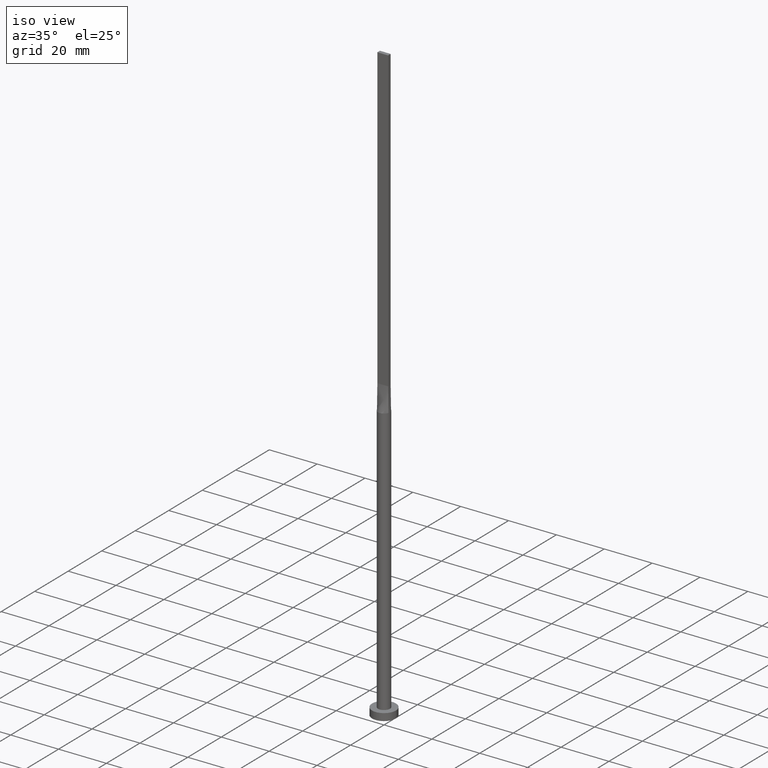
[diagram: clean part render]
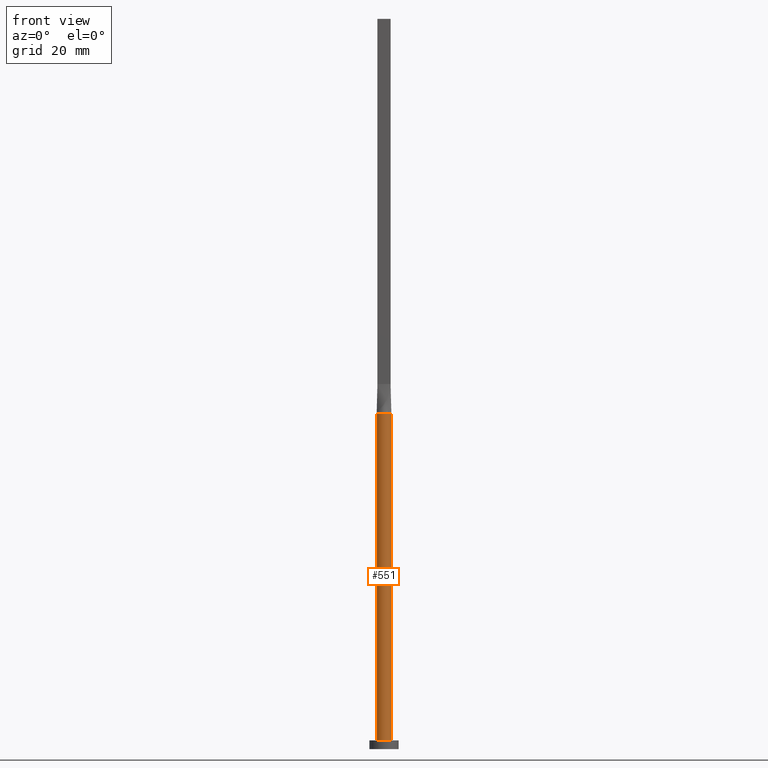
[diagram: tour spotlight — one face highlighted and labeled with its STEP entity id]
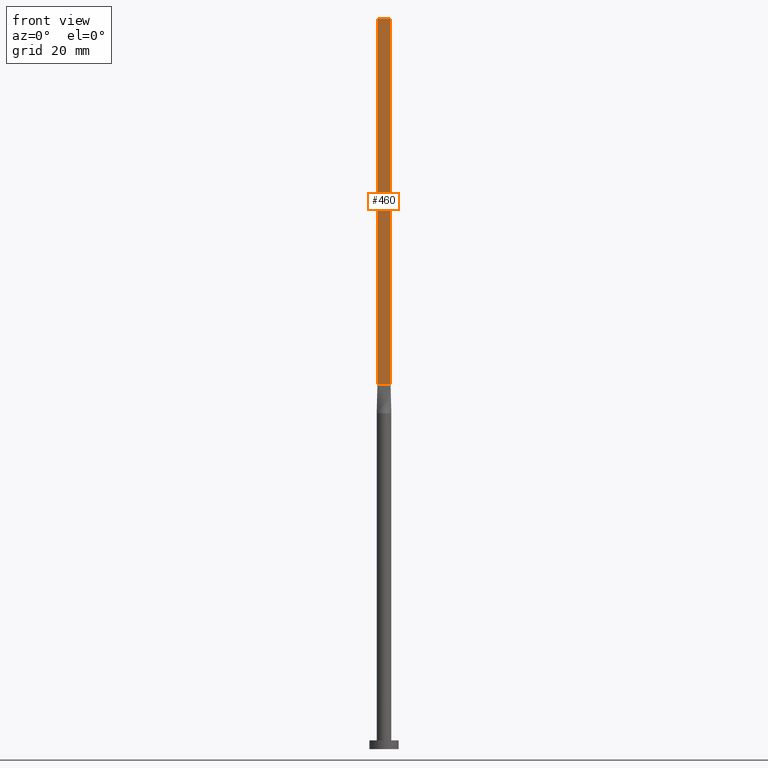
[diagram: tour spotlight — one face highlighted and labeled with its STEP entity id]
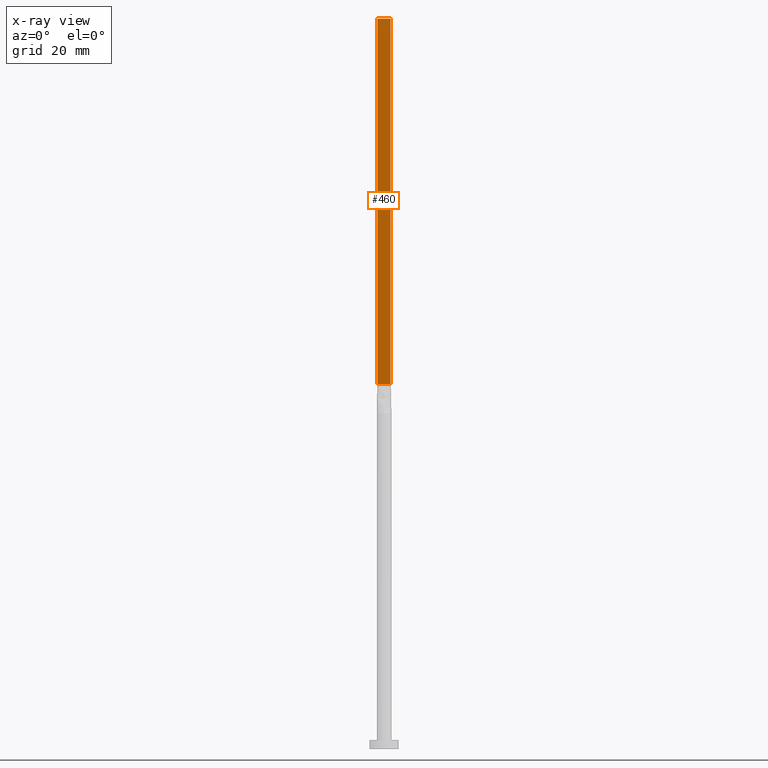
[diagram: x-ray of the same camera — body ghosted, this tour face saturated]
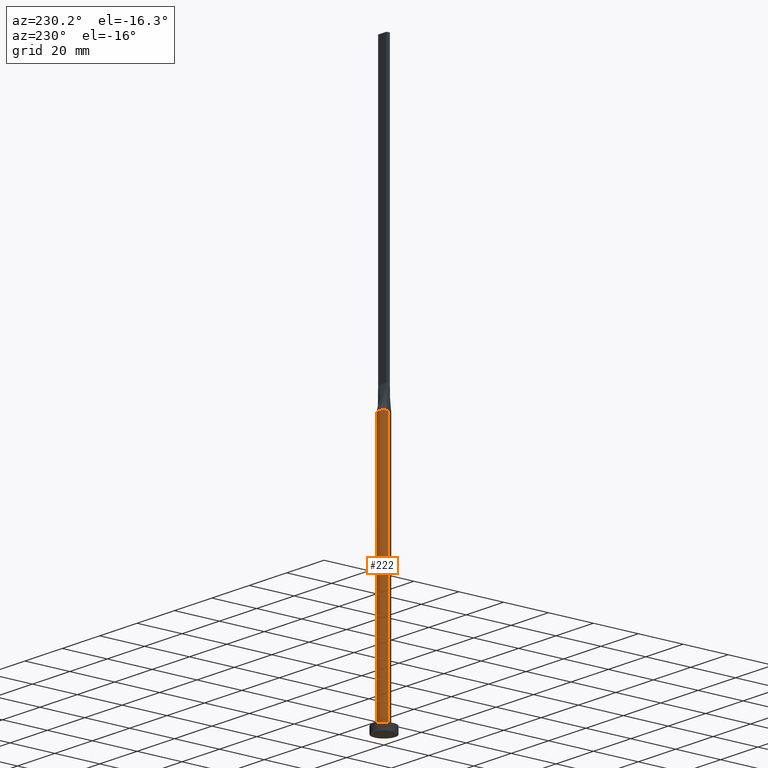
[diagram: tour spotlight — one face highlighted and labeled with its STEP entity id]
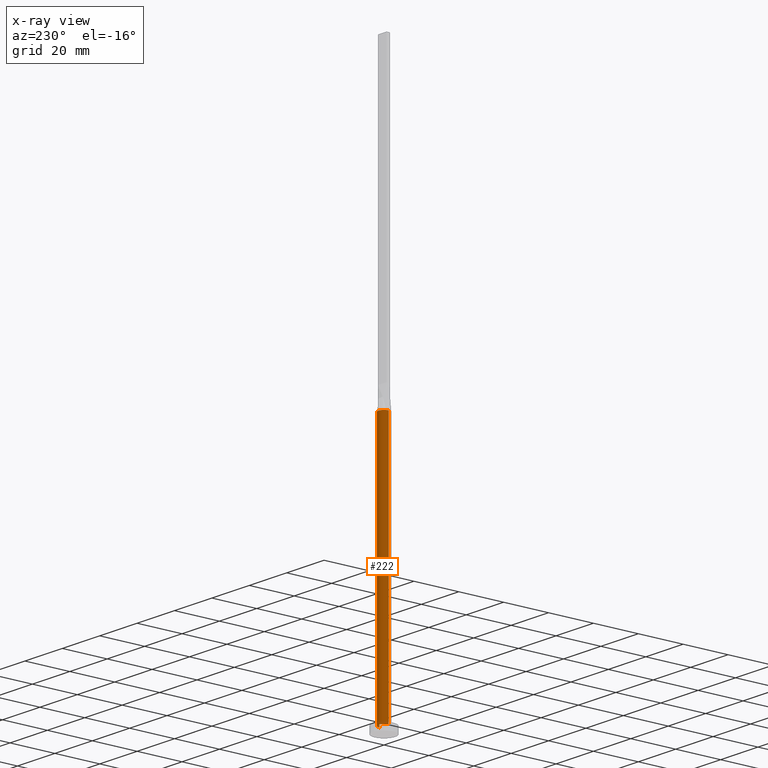
[diagram: x-ray of the same camera — body ghosted, this tour face saturated]
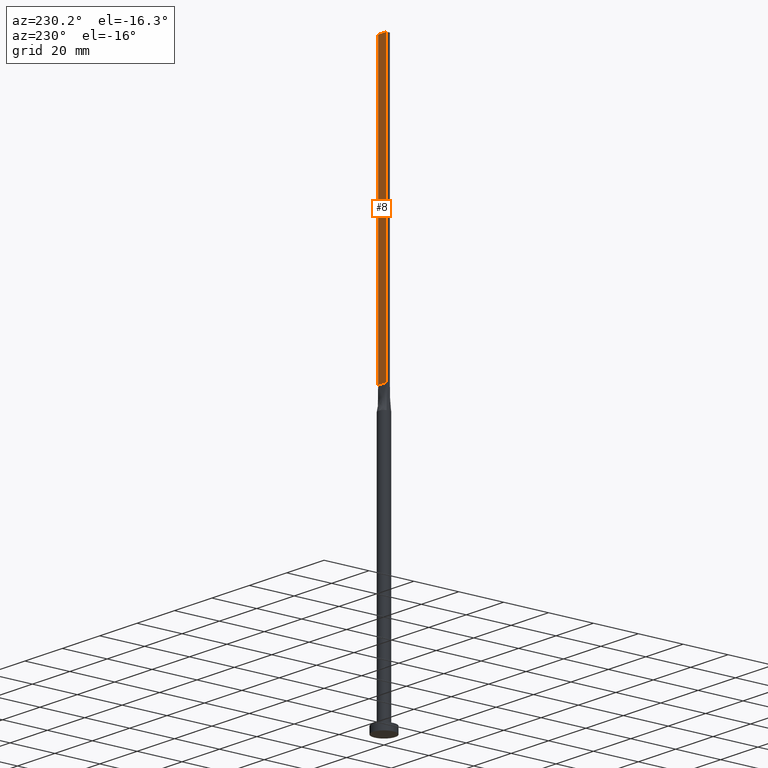
[diagram: tour spotlight — one face highlighted and labeled with its STEP entity id]
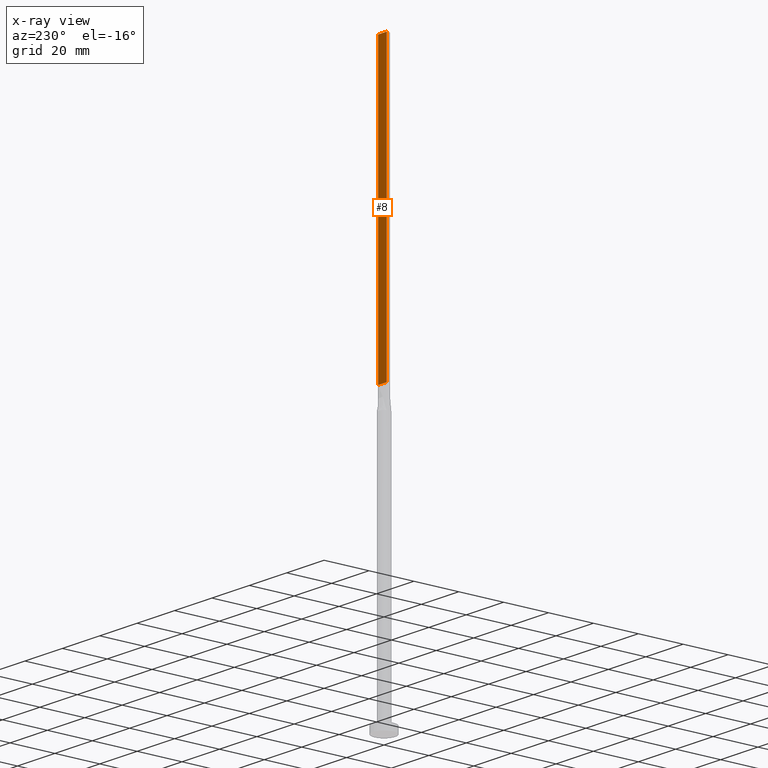
[diagram: x-ray of the same camera — body ghosted, this tour face saturated]
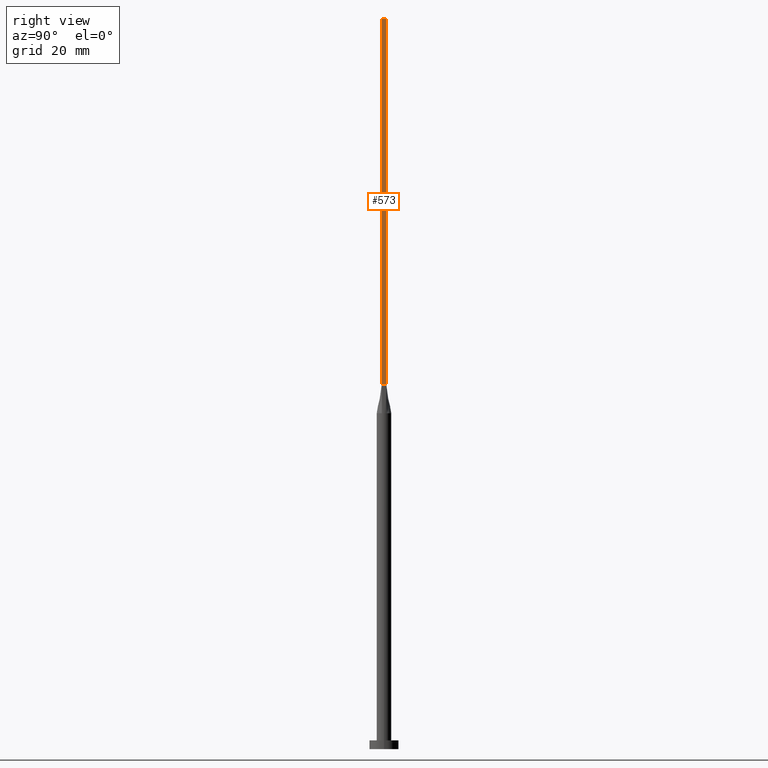
[diagram: tour spotlight — one face highlighted and labeled with its STEP entity id]
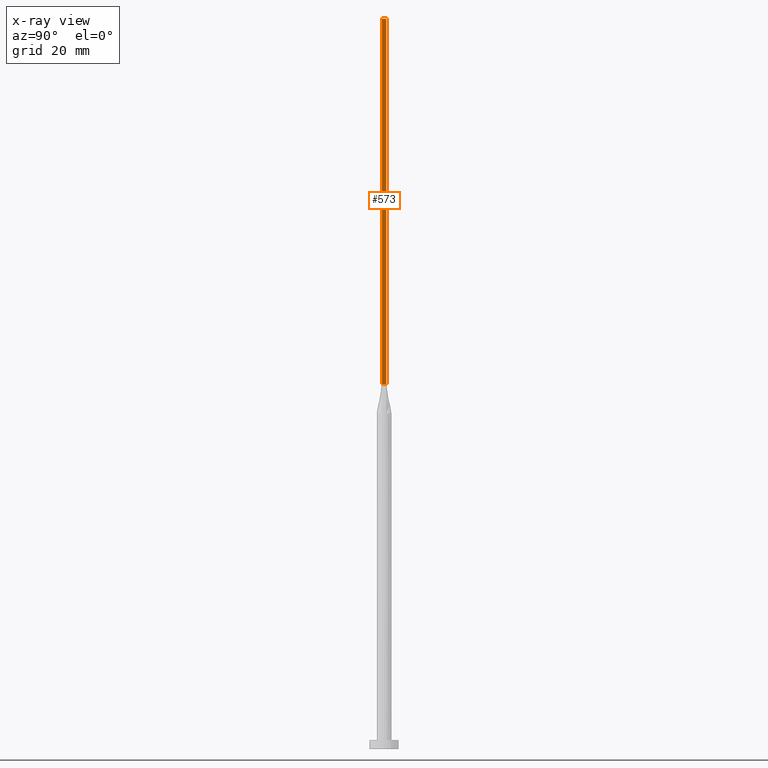
[diagram: x-ray of the same camera — body ghosted, this tour face saturated]
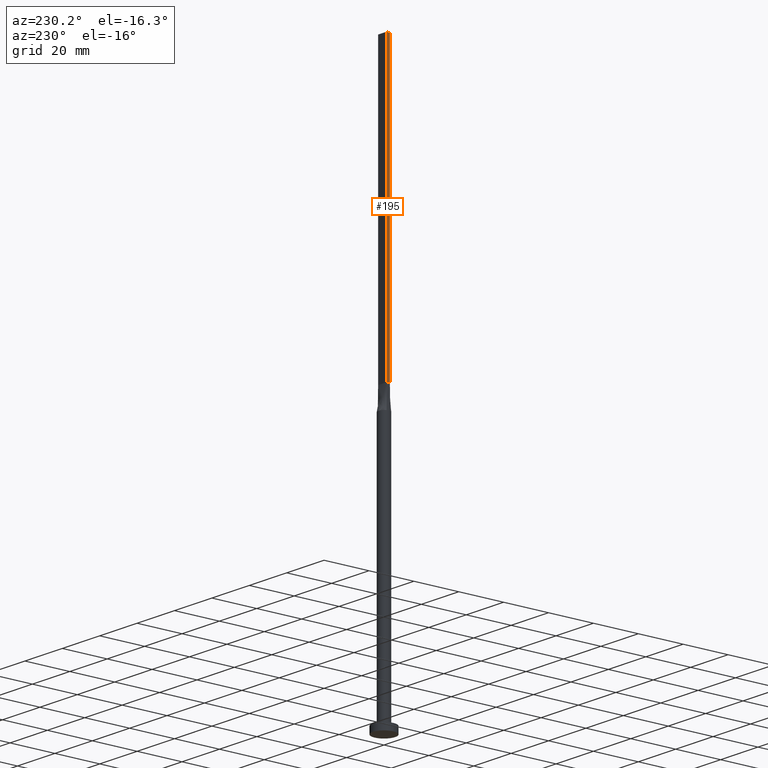
[diagram: tour spotlight — one face highlighted and labeled with its STEP entity id]
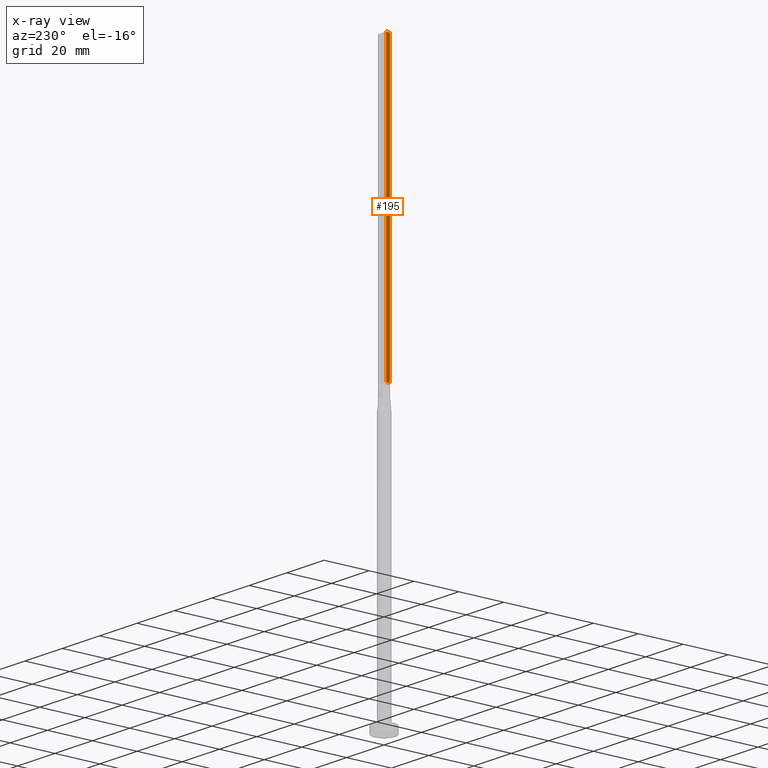
[diagram: x-ray of the same camera — body ghosted, this tour face saturated]
A machine part: a face-by-face anatomy tour. The part has 15 B-rep faces; the first image is the clean iso view, then the 6 largest visible faces are spotlighted one at a time (largest first), each with its STEP entity span.

Face 1 — front view, entity #551. In plain terms, the highlighted cylindrical surface (edge-blend (fillet) strip) has radius 2.5 mm, axis along (-0, -0, -1).
Definition (entity closure, byte-faithful):
#27 = CARTESIAN_POINT ( 'NONE',  ( 2.500000000000000000, 3.061616997868383141E-16, 3.000000000000000000 ) ) ;
#28 = VERTEX_POINT ( 'NONE', #232 ) ;
#31 = ORIENTED_EDGE ( 'NONE', *, *, #485, .T. ) ;
#46 = EDGE_CURVE ( 'NONE', #214, #28, #215, .T. ) ;
#51 = VECTOR ( 'NONE', #61, 1000.000000000000000 ) ;
#54 = AXIS2_PLACEMENT_3D ( 'NONE', #253, #241, #69 ) ;
#61 = DIRECTION ( 'NONE',  ( -0.000000000000000000, -0.000000000000000000, -1.000000000000000000 ) ) ;
#69 = DIRECTION ( 'NONE',  ( -1.000000000000000000, 0.000000000000000000, 0.000000000000000000 ) ) ;
#82 = DIRECTION ( 'NONE',  ( 1.000000000000000000, 0.000000000000000000, 0.000000000000000000 ) ) ;
#105 = CARTESIAN_POINT ( 'NONE',  ( 2.499999999999999556, 3.110810548879990207E-17, 115.0000000000000142 ) ) ;
#110 = CYLINDRICAL_SURFACE ( 'NONE', #54, 2.500000000000000000 ) ;
#113 = EDGE_CURVE ( 'NONE', #303, #480, #554, .T. ) ;
#117 = DIRECTION ( 'NONE',  ( 0.000000000000000000, 0.000000000000000000, 1.000000000000000000 ) ) ;
#119 = CIRCLE ( 'NONE', #121, 2.500000000000000000 ) ;
#121 = AXIS2_PLACEMENT_3D ( 'NONE', #127, #117, #82 ) ;
#127 = CARTESIAN_POINT ( 'NONE',  ( 0.000000000000000000, 0.000000000000000000, 115.0000000000000000 ) ) ;
#136 = CARTESIAN_POINT ( 'NONE',  ( 0.000000000000000000, 0.000000000000000000, 115.0000000000000000 ) ) ;
#141 = EDGE_CURVE ( 'NONE', #214, #224, #464, .T. ) ;
#150 = DIRECTION ( 'NONE',  ( 0.000000000000000000, 0.000000000000000000, 1.000000000000000000 ) ) ;
#153 = EDGE_LOOP ( 'NONE', ( #565, #258, #226, #380, #524, #31 ) ) ;
#185 = DIRECTION ( 'NONE',  ( 0.000000000000000000, 0.000000000000000000, 1.000000000000000000 ) ) ;
#207 = DIRECTION ( 'NONE',  ( -0.000000000000000000, -0.000000000000000000, -1.000000000000000000 ) ) ;
#214 = VERTEX_POINT ( 'NONE', #417 ) ;
#215 = CIRCLE ( 'NONE', #350, 2.500000000000000000 ) ;
#224 = VERTEX_POINT ( 'NONE', #379 ) ;
#226 = ORIENTED_EDGE ( 'NONE', *, *, #268, .F. ) ;
#232 = CARTESIAN_POINT ( 'NONE',  ( -2.371775648085652222, -0.7905922034696525325, 115.0000000000000000 ) ) ;
#233 = DIRECTION ( 'NONE',  ( 1.000000000000000000, 0.000000000000000000, 0.000000000000000000 ) ) ;
#241 = DIRECTION ( 'NONE',  ( -0.000000000000000000, -0.000000000000000000, -1.000000000000000000 ) ) ;
#253 = CARTESIAN_POINT ( 'NONE',  ( 0.000000000000000000, 0.000000000000000000, 115.0000000000000000 ) ) ;
#257 = CARTESIAN_POINT ( 'NONE',  ( 2.500000000000000000, 3.061616997868383141E-16, 115.0000000000000000 ) ) ;
#258 = ORIENTED_EDGE ( 'NONE', *, *, #113, .F. ) ;
#267 = CARTESIAN_POINT ( 'NONE',  ( 0.000000000000000000, 0.000000000000000000, 115.0000000000000000 ) ) ;
#268 = EDGE_CURVE ( 'NONE', #28, #303, #119, .T. ) ;
#274 = DIRECTION ( 'NONE',  ( 0.000000000000000000, 0.000000000000000000, 1.000000000000000000 ) ) ;
#275 = CARTESIAN_POINT ( 'NONE',  ( 0.000000000000000000, 0.000000000000000000, 3.000000000000000000 ) ) ;
#290 = CARTESIAN_POINT ( 'NONE',  ( -2.500000000000000000, 0.000000000000000000, 115.0000000000000000 ) ) ;
#303 = VERTEX_POINT ( 'NONE', #386 ) ;
#314 = VERTEX_POINT ( 'NONE', #27 ) ;
#319 = DIRECTION ( 'NONE',  ( 1.000000000000000000, 0.000000000000000000, 0.000000000000000000 ) ) ;
#335 = EDGE_CURVE ( 'NONE', #480, #314, #342, .T. ) ;
#342 = LINE ( 'NONE', #257, #556 ) ;
#350 = AXIS2_PLACEMENT_3D ( 'NONE', #136, #274, #319 ) ;
#359 = DIRECTION ( 'NONE',  ( 1.000000000000000000, -4.440892098500626162E-15, 0.000000000000000000 ) ) ;
#379 = CARTESIAN_POINT ( 'NONE',  ( -2.500000000000000000, 0.000000000000000000, 3.000000000000000000 ) ) ;
#380 = ORIENTED_EDGE ( 'NONE', *, *, #46, .F. ) ;
#386 = CARTESIAN_POINT ( 'NONE',  ( 2.371798206859841329, -0.7905998626979697796, 115.0000000000000000 ) ) ;
#417 = CARTESIAN_POINT ( 'NONE',  ( -2.500000000000000444, -1.570839010700814298E-16, 115.0000000000000142 ) ) ;
#425 = CIRCLE ( 'NONE', #447, 2.500000000000000000 ) ;
#447 = AXIS2_PLACEMENT_3D ( 'NONE', #275, #150, #233 ) ;
#461 = FACE_OUTER_BOUND ( 'NONE', #153, .T. ) ;
#464 = LINE ( 'NONE', #290, #51 ) ;
#480 = VERTEX_POINT ( 'NONE', #105 ) ;
#485 = EDGE_CURVE ( 'NONE', #224, #314, #425, .T. ) ;
#524 = ORIENTED_EDGE ( 'NONE', *, *, #141, .T. ) ;
#546 = AXIS2_PLACEMENT_3D ( 'NONE', #267, #185, #359 ) ;
#551 = ADVANCED_FACE ( 'NONE', ( #461 ), #110, .T. ) ;
#554 = CIRCLE ( 'NONE', #546, 2.500000000000000000 ) ;
#556 = VECTOR ( 'NONE', #207, 1000.000000000000000 ) ;
#565 = ORIENTED_EDGE ( 'NONE', *, *, #335, .F. ) ;

Face 2 — front view, entity #460. An x-ray twin of the same camera follows (body ghosted, this face saturated) — the face is partly hidden behind the body. In plain terms, the highlighted planar face has unit normal (0, 1, -0).
Definition (entity closure, byte-faithful):
#11 = PLANE ( 'NONE',  #472 ) ;
#44 = VECTOR ( 'NONE', #269, 1000.000000000000000 ) ;
#64 = CARTESIAN_POINT ( 'NONE',  ( 2.250000000000000000, -0.7499999999999997780, 250.0000000000000000 ) ) ;
#72 = EDGE_CURVE ( 'NONE', #249, #83, #404, .T. ) ;
#83 = VERTEX_POINT ( 'NONE', #497 ) ;
#88 = ORIENTED_EDGE ( 'NONE', *, *, #72, .T. ) ;
#125 = DIRECTION ( 'NONE',  ( -0.000000000000000000, -0.000000000000000000, -1.000000000000000000 ) ) ;
#126 = VERTEX_POINT ( 'NONE', #537 ) ;
#130 = VECTOR ( 'NONE', #125, 1000.000000000000000 ) ;
#170 = LINE ( 'NONE', #523, #567 ) ;
#194 = CARTESIAN_POINT ( 'NONE',  ( -2.250000000000000000, -0.7499999999999995559, 250.0000000000000000 ) ) ;
#229 = CARTESIAN_POINT ( 'NONE',  ( 2.250000000000000000, -0.7499999999999997780, 250.0000000000000000 ) ) ;
#231 = DIRECTION ( 'NONE',  ( 4.818676322157797621E-17, 1.000000000000000000, -0.000000000000000000 ) ) ;
#236 = FACE_OUTER_BOUND ( 'NONE', #542, .T. ) ;
#242 = EDGE_CURVE ( 'NONE', #446, #83, #286, .T. ) ;
#249 = VERTEX_POINT ( 'NONE', #383 ) ;
#269 = DIRECTION ( 'NONE',  ( 1.000000000000000000, -4.818676322157797621E-17, 0.000000000000000000 ) ) ;
#286 = LINE ( 'NONE', #64, #321 ) ;
#291 = DIRECTION ( 'NONE',  ( 1.000000000000000000, -4.818676322157797621E-17, 0.000000000000000000 ) ) ;
#302 = DIRECTION ( 'NONE',  ( -0.000000000000000000, -0.000000000000000000, -1.000000000000000000 ) ) ;
#316 = CARTESIAN_POINT ( 'NONE',  ( -2.250000000000000000, -0.7499999999999995559, 125.0000000000000000 ) ) ;
#321 = VECTOR ( 'NONE', #302, 1000.000000000000000 ) ;
#344 = EDGE_CURVE ( 'NONE', #126, #446, #170, .T. ) ;
#347 = CARTESIAN_POINT ( 'NONE',  ( -2.250000000000000000, -0.7499999999999995559, 250.0000000000000000 ) ) ;
#364 = EDGE_CURVE ( 'NONE', #126, #249, #481, .T. ) ;
#383 = CARTESIAN_POINT ( 'NONE',  ( -2.250000000000000000, -0.7499999999999995559, 125.0000000000000000 ) ) ;
#384 = ORIENTED_EDGE ( 'NONE', *, *, #242, .F. ) ;
#404 = LINE ( 'NONE', #316, #44 ) ;
#408 = DIRECTION ( 'NONE',  ( -1.000000000000000000, 4.818676322157797621E-17, 0.000000000000000000 ) ) ;
#446 = VERTEX_POINT ( 'NONE', #229 ) ;
#460 = ADVANCED_FACE ( 'NONE', ( #236 ), #11, .F. ) ;
#472 = AXIS2_PLACEMENT_3D ( 'NONE', #194, #231, #408 ) ;
#481 = LINE ( 'NONE', #347, #130 ) ;
#497 = CARTESIAN_POINT ( 'NONE',  ( 2.250000000000000000, -0.7499999999999997780, 125.0000000000000000 ) ) ;
#516 = ORIENTED_EDGE ( 'NONE', *, *, #344, .F. ) ;
#523 = CARTESIAN_POINT ( 'NONE',  ( -2.250000000000000000, -0.7499999999999995559, 250.0000000000000000 ) ) ;
#537 = CARTESIAN_POINT ( 'NONE',  ( -2.250000000000000000, -0.7499999999999995559, 250.0000000000000000 ) ) ;
#542 = EDGE_LOOP ( 'NONE', ( #88, #384, #516, #572 ) ) ;
#567 = VECTOR ( 'NONE', #291, 1000.000000000000000 ) ;
#572 = ORIENTED_EDGE ( 'NONE', *, *, #364, .T. ) ;

Face 3 — auxiliary view, entity #222. An x-ray twin of the same camera follows (body ghosted, this face saturated) — the face is partly hidden behind the body. In plain terms, the highlighted cylindrical surface (edge-blend (fillet) strip) has radius 2.5 mm, axis along (-0, -0, -1).
Definition (entity closure, byte-faithful):
#2 = CARTESIAN_POINT ( 'NONE',  ( -2.371795432964766359, 0.7905989074952441964, 115.0000000000000000 ) ) ;
#13 = FACE_OUTER_BOUND ( 'NONE', #45, .T. ) ;
#19 = DIRECTION ( 'NONE',  ( -0.000000000000000000, -0.000000000000000000, -1.000000000000000000 ) ) ;
#27 = CARTESIAN_POINT ( 'NONE',  ( 2.500000000000000000, 3.061616997868383141E-16, 3.000000000000000000 ) ) ;
#33 = AXIS2_PLACEMENT_3D ( 'NONE', #363, #443, #409 ) ;
#45 = EDGE_LOOP ( 'NONE', ( #420, #305, #175, #366, #118, #221 ) ) ;
#51 = VECTOR ( 'NONE', #61, 1000.000000000000000 ) ;
#58 = DIRECTION ( 'NONE',  ( 1.000000000000000000, 0.000000000000000000, 0.000000000000000000 ) ) ;
#60 = EDGE_CURVE ( 'NONE', #392, #214, #284, .T. ) ;
#61 = DIRECTION ( 'NONE',  ( -0.000000000000000000, -0.000000000000000000, -1.000000000000000000 ) ) ;
#102 = CARTESIAN_POINT ( 'NONE',  ( -0.3003163416900526128, 2.499999999999999112, 115.0000000000000426 ) ) ;
#104 = CARTESIAN_POINT ( 'NONE',  ( -0.6000386972366482663, 2.444291348568452094, 115.0000000000000142 ) ) ;
#105 = CARTESIAN_POINT ( 'NONE',  ( 2.499999999999999556, 3.110810548879990207E-17, 115.0000000000000142 ) ) ;
#106 = CARTESIAN_POINT ( 'NONE',  ( 0.6000386972366480443, 2.444291348568451649, 115.0000000000000426 ) ) ;
#118 = ORIENTED_EDGE ( 'NONE', *, *, #60, .F. ) ;
#129 = CIRCLE ( 'NONE', #370, 2.500000000000000000 ) ;
#141 = EDGE_CURVE ( 'NONE', #214, #224, #464, .T. ) ;
#151 = EDGE_CURVE ( 'NONE', #348, #392, #483, .T. ) ;
#158 = CARTESIAN_POINT ( 'NONE',  ( -1.390086206340438890, 2.094828891646495883, 115.0000000000000142 ) ) ;
#160 = EDGE_CURVE ( 'NONE', #480, #348, #129, .T. ) ;
#175 = ORIENTED_EDGE ( 'NONE', *, *, #581, .T. ) ;
#193 = CYLINDRICAL_SURFACE ( 'NONE', #247, 2.500000000000000000 ) ;
#201 = CARTESIAN_POINT ( 'NONE',  ( 1.390086206340439112, 2.094828891646494995, 115.0000000000000426 ) ) ;
#203 = CARTESIAN_POINT ( 'NONE',  ( 0.000000000000000000, 0.000000000000000000, 115.0000000000000000 ) ) ;
#207 = DIRECTION ( 'NONE',  ( -0.000000000000000000, -0.000000000000000000, -1.000000000000000000 ) ) ;
#214 = VERTEX_POINT ( 'NONE', #417 ) ;
#221 = ORIENTED_EDGE ( 'NONE', *, *, #151, .F. ) ;
#222 = ADVANCED_FACE ( 'NONE', ( #13 ), #193, .T. ) ;
#224 = VERTEX_POINT ( 'NONE', #379 ) ;
#234 = CARTESIAN_POINT ( 'NONE',  ( -1.145194483530141527, 2.241235424885160921, 115.0000000000000426 ) ) ;
#239 = CARTESIAN_POINT ( 'NONE',  ( 2.371772892450305648, 0.7905912578404317159, 115.0000000000000000 ) ) ;
#247 = AXIS2_PLACEMENT_3D ( 'NONE', #203, #19, #499 ) ;
#257 = CARTESIAN_POINT ( 'NONE',  ( 2.500000000000000000, 3.061616997868383141E-16, 115.0000000000000000 ) ) ;
#277 = CARTESIAN_POINT ( 'NONE',  ( 2.218933079238281980, 1.174882007252000315, 115.0000000000000284 ) ) ;
#279 = CARTESIAN_POINT ( 'NONE',  ( -1.964343640889990805, 1.563766543189048175, 115.0000000000000142 ) ) ;
#284 = CIRCLE ( 'NONE', #33, 2.500000000000000000 ) ;
#289 = DIRECTION ( 'NONE',  ( 1.000000000000000000, 0.000000000000000000, 0.000000000000000000 ) ) ;
#290 = CARTESIAN_POINT ( 'NONE',  ( -2.500000000000000000, 0.000000000000000000, 115.0000000000000000 ) ) ;
#305 = ORIENTED_EDGE ( 'NONE', *, *, #335, .T. ) ;
#314 = VERTEX_POINT ( 'NONE', #27 ) ;
#332 = CARTESIAN_POINT ( 'NONE',  ( 0.000000000000000000, 0.000000000000000000, 115.0000000000000000 ) ) ;
#335 = EDGE_CURVE ( 'NONE', #480, #314, #342, .T. ) ;
#342 = LINE ( 'NONE', #257, #556 ) ;
#348 = VERTEX_POINT ( 'NONE', #436 ) ;
#363 = CARTESIAN_POINT ( 'NONE',  ( 0.000000000000000000, 0.000000000000000000, 115.0000000000000000 ) ) ;
#366 = ORIENTED_EDGE ( 'NONE', *, *, #141, .F. ) ;
#370 = AXIS2_PLACEMENT_3D ( 'NONE', #332, #457, #58 ) ;
#372 = CARTESIAN_POINT ( 'NONE',  ( 1.145194483530141749, 2.241235424885160921, 115.0000000000000142 ) ) ;
#374 = CARTESIAN_POINT ( 'NONE',  ( -2.218933079238281536, 1.174882007251999871, 115.0000000000000284 ) ) ;
#379 = CARTESIAN_POINT ( 'NONE',  ( -2.500000000000000000, 0.000000000000000000, 3.000000000000000000 ) ) ;
#392 = VERTEX_POINT ( 'NONE', #2 ) ;
#409 = DIRECTION ( 'NONE',  ( 1.000000000000000000, 0.000000000000000000, 0.000000000000000000 ) ) ;
#411 = CARTESIAN_POINT ( 'NONE',  ( -2.309208245126284975, 0.9780694150420951027, 115.0000000000000284 ) ) ;
#416 = AXIS2_PLACEMENT_3D ( 'NONE', #555, #476, #289 ) ;
#417 = CARTESIAN_POINT ( 'NONE',  ( -2.500000000000000444, -1.570839010700814298E-16, 115.0000000000000142 ) ) ;
#420 = ORIENTED_EDGE ( 'NONE', *, *, #160, .F. ) ;
#436 = CARTESIAN_POINT ( 'NONE',  ( 2.371772892450305648, 0.7905912578404317159, 115.0000000000000000 ) ) ;
#443 = DIRECTION ( 'NONE',  ( 0.000000000000000000, 0.000000000000000000, 1.000000000000000000 ) ) ;
#457 = DIRECTION ( 'NONE',  ( 0.000000000000000000, 0.000000000000000000, 1.000000000000000000 ) ) ;
#459 = CARTESIAN_POINT ( 'NONE',  ( 0.3003163416900527238, 2.499999999999999556, 115.0000000000000142 ) ) ;
#464 = LINE ( 'NONE', #290, #51 ) ;
#476 = DIRECTION ( 'NONE',  ( 0.000000000000000000, 0.000000000000000000, 1.000000000000000000 ) ) ;
#480 = VERTEX_POINT ( 'NONE', #105 ) ;
#483 = B_SPLINE_CURVE_WITH_KNOTS ( 'NONE', 3,
 ( #239, #545, #277, #511, #553, #201, #372, #106, #459, #102, #104, #234, #158, #506, #279, #374, #411, #548 ),
 .UNSPECIFIED., .F., .F.,
 ( 4, 2, 2, 2, 2, 2, 2, 2, 4 ),
 ( 0.000000000000000000, 0.1250000000000000000, 0.2500000000000000000, 0.3750000000000000000, 0.5000000000000000000, 0.6250000000000000000, 0.7500000000000000000, 0.8750000000000000000, 1.000000000000000000 ),
 .UNSPECIFIED. ) ;
#492 = CIRCLE ( 'NONE', #416, 2.500000000000000000 ) ;
#499 = DIRECTION ( 'NONE',  ( -1.000000000000000000, 0.000000000000000000, 0.000000000000000000 ) ) ;
#506 = CARTESIAN_POINT ( 'NONE',  ( -1.799471046981195199, 1.755719709239274229, 115.0000000000000000 ) ) ;
#511 = CARTESIAN_POINT ( 'NONE',  ( 1.964343640889990361, 1.563766543189047287, 114.9999999999999858 ) ) ;
#545 = CARTESIAN_POINT ( 'NONE',  ( 2.309208245126284975, 0.9780694150420948807, 114.9999999999999858 ) ) ;
#548 = CARTESIAN_POINT ( 'NONE',  ( -2.371795432964766359, 0.7905989074952441964, 115.0000000000000000 ) ) ;
#553 = CARTESIAN_POINT ( 'NONE',  ( 1.799471046981194977, 1.755719709239274007, 115.0000000000000142 ) ) ;
#555 = CARTESIAN_POINT ( 'NONE',  ( 0.000000000000000000, 0.000000000000000000, 3.000000000000000000 ) ) ;
#556 = VECTOR ( 'NONE', #207, 1000.000000000000000 ) ;
#581 = EDGE_CURVE ( 'NONE', #314, #224, #492, .T. ) ;

Face 4 — auxiliary view, entity #8. An x-ray twin of the same camera follows (body ghosted, this face saturated) — the face is partly hidden behind the body. In plain terms, the highlighted planar face has unit normal (0, -1, 0).
Definition (entity closure, byte-faithful):
#1 = CARTESIAN_POINT ( 'NONE',  ( 2.249999999999999556, 0.7500000000000002220, 250.0000000000000000 ) ) ;
#7 = ORIENTED_EDGE ( 'NONE', *, *, #296, .F. ) ;
#8 = ADVANCED_FACE ( 'NONE', ( #134 ), #189, .F. ) ;
#9 = CARTESIAN_POINT ( 'NONE',  ( -2.249999999999999556, 0.7500000000000002220, 250.0000000000000000 ) ) ;
#23 = CARTESIAN_POINT ( 'NONE',  ( 2.249999999999999556, 0.7500000000000002220, 250.0000000000000000 ) ) ;
#35 = VECTOR ( 'NONE', #429, 1000.000000000000000 ) ;
#41 = ORIENTED_EDGE ( 'NONE', *, *, #371, .T. ) ;
#84 = CARTESIAN_POINT ( 'NONE',  ( -2.249999999999999556, 0.7500000000000002220, 125.0000000000000000 ) ) ;
#85 = VERTEX_POINT ( 'NONE', #398 ) ;
#99 = VERTEX_POINT ( 'NONE', #532 ) ;
#114 = LINE ( 'NONE', #84, #285 ) ;
#123 = ORIENTED_EDGE ( 'NONE', *, *, #401, .T. ) ;
#128 = VERTEX_POINT ( 'NONE', #407 ) ;
#134 = FACE_OUTER_BOUND ( 'NONE', #164, .T. ) ;
#163 = CARTESIAN_POINT ( 'NONE',  ( 2.249999999999999556, 0.7500000000000002220, 250.0000000000000000 ) ) ;
#164 = EDGE_LOOP ( 'NONE', ( #123, #478, #7, #41 ) ) ;
#179 = VECTOR ( 'NONE', #324, 1000.000000000000000 ) ;
#189 = PLANE ( 'NONE',  #390 ) ;
#213 = LINE ( 'NONE', #23, #35 ) ;
#217 = LINE ( 'NONE', #163, #482 ) ;
#238 = CARTESIAN_POINT ( 'NONE',  ( -2.249999999999999556, 0.7500000000000002220, 125.0000000000000000 ) ) ;
#261 = DIRECTION ( 'NONE',  ( -1.000000000000000000, -0.000000000000000000, -0.000000000000000000 ) ) ;
#272 = DIRECTION ( 'NONE',  ( 0.000000000000000000, -1.000000000000000000, 0.000000000000000000 ) ) ;
#285 = VECTOR ( 'NONE', #261, 1000.000000000000000 ) ;
#296 = EDGE_CURVE ( 'NONE', #85, #128, #213, .T. ) ;
#324 = DIRECTION ( 'NONE',  ( -0.000000000000000000, -0.000000000000000000, -1.000000000000000000 ) ) ;
#371 = EDGE_CURVE ( 'NONE', #85, #99, #217, .T. ) ;
#390 = AXIS2_PLACEMENT_3D ( 'NONE', #1, #272, #540 ) ;
#394 = DIRECTION ( 'NONE',  ( -0.000000000000000000, -0.000000000000000000, -1.000000000000000000 ) ) ;
#398 = CARTESIAN_POINT ( 'NONE',  ( 2.249999999999999556, 0.7500000000000002220, 250.0000000000000000 ) ) ;
#401 = EDGE_CURVE ( 'NONE', #99, #527, #114, .T. ) ;
#407 = CARTESIAN_POINT ( 'NONE',  ( -2.249999999999999556, 0.7500000000000002220, 250.0000000000000000 ) ) ;
#410 = LINE ( 'NONE', #9, #179 ) ;
#429 = DIRECTION ( 'NONE',  ( -1.000000000000000000, 0.000000000000000000, 0.000000000000000000 ) ) ;
#478 = ORIENTED_EDGE ( 'NONE', *, *, #501, .F. ) ;
#482 = VECTOR ( 'NONE', #394, 1000.000000000000000 ) ;
#501 = EDGE_CURVE ( 'NONE', #128, #527, #410, .T. ) ;
#527 = VERTEX_POINT ( 'NONE', #238 ) ;
#532 = CARTESIAN_POINT ( 'NONE',  ( 2.249999999999999556, 0.7500000000000002220, 125.0000000000000000 ) ) ;
#540 = DIRECTION ( 'NONE',  ( 0.000000000000000000, -0.000000000000000000, -1.000000000000000000 ) ) ;

Face 5 — right view, entity #573. An x-ray twin of the same camera follows (body ghosted, this face saturated) — the face is partly hidden behind the body. In plain terms, the highlighted planar face has unit normal (-1, -0, 0).
Definition (entity closure, byte-faithful):
#3 = LINE ( 'NONE', #265, #360 ) ;
#64 = CARTESIAN_POINT ( 'NONE',  ( 2.250000000000000000, -0.7499999999999997780, 250.0000000000000000 ) ) ;
#81 = EDGE_CURVE ( 'NONE', #83, #99, #3, .T. ) ;
#83 = VERTEX_POINT ( 'NONE', #497 ) ;
#85 = VERTEX_POINT ( 'NONE', #398 ) ;
#99 = VERTEX_POINT ( 'NONE', #532 ) ;
#163 = CARTESIAN_POINT ( 'NONE',  ( 2.249999999999999556, 0.7500000000000002220, 250.0000000000000000 ) ) ;
#199 = ORIENTED_EDGE ( 'NONE', *, *, #415, .F. ) ;
#217 = LINE ( 'NONE', #163, #482 ) ;
#229 = CARTESIAN_POINT ( 'NONE',  ( 2.250000000000000000, -0.7499999999999997780, 250.0000000000000000 ) ) ;
#242 = EDGE_CURVE ( 'NONE', #446, #83, #286, .T. ) ;
#244 = PLANE ( 'NONE',  #340 ) ;
#265 = CARTESIAN_POINT ( 'NONE',  ( 2.249999999999999556, 0.7500000000000002220, 125.0000000000000000 ) ) ;
#286 = LINE ( 'NONE', #64, #321 ) ;
#288 = EDGE_LOOP ( 'NONE', ( #575, #486, #199, #387 ) ) ;
#302 = DIRECTION ( 'NONE',  ( -0.000000000000000000, -0.000000000000000000, -1.000000000000000000 ) ) ;
#309 = DIRECTION ( 'NONE',  ( -2.891205793294678326E-16, 1.000000000000000000, -0.000000000000000000 ) ) ;
#321 = VECTOR ( 'NONE', #302, 1000.000000000000000 ) ;
#333 = LINE ( 'NONE', #513, #351 ) ;
#338 = CARTESIAN_POINT ( 'NONE',  ( 2.250000000000000000, -0.7499999999999997780, 250.0000000000000000 ) ) ;
#340 = AXIS2_PLACEMENT_3D ( 'NONE', #338, #514, #508 ) ;
#351 = VECTOR ( 'NONE', #469, 1000.000000000000000 ) ;
#360 = VECTOR ( 'NONE', #309, 1000.000000000000000 ) ;
#371 = EDGE_CURVE ( 'NONE', #85, #99, #217, .T. ) ;
#387 = ORIENTED_EDGE ( 'NONE', *, *, #242, .T. ) ;
#394 = DIRECTION ( 'NONE',  ( -0.000000000000000000, -0.000000000000000000, -1.000000000000000000 ) ) ;
#398 = CARTESIAN_POINT ( 'NONE',  ( 2.249999999999999556, 0.7500000000000002220, 250.0000000000000000 ) ) ;
#415 = EDGE_CURVE ( 'NONE', #446, #85, #333, .T. ) ;
#446 = VERTEX_POINT ( 'NONE', #229 ) ;
#469 = DIRECTION ( 'NONE',  ( -2.891205793294678326E-16, 1.000000000000000000, 0.000000000000000000 ) ) ;
#482 = VECTOR ( 'NONE', #394, 1000.000000000000000 ) ;
#486 = ORIENTED_EDGE ( 'NONE', *, *, #371, .F. ) ;
#497 = CARTESIAN_POINT ( 'NONE',  ( 2.250000000000000000, -0.7499999999999997780, 125.0000000000000000 ) ) ;
#508 = DIRECTION ( 'NONE',  ( 2.891205793294678326E-16, -1.000000000000000000, 0.000000000000000000 ) ) ;
#513 = CARTESIAN_POINT ( 'NONE',  ( 2.250000000000000000, -0.7499999999999997780, 250.0000000000000000 ) ) ;
#514 = DIRECTION ( 'NONE',  ( -1.000000000000000000, -2.891205793294678326E-16, 0.000000000000000000 ) ) ;
#532 = CARTESIAN_POINT ( 'NONE',  ( 2.249999999999999556, 0.7500000000000002220, 125.0000000000000000 ) ) ;
#549 = FACE_OUTER_BOUND ( 'NONE', #288, .T. ) ;
#573 = ADVANCED_FACE ( 'NONE', ( #549 ), #244, .F. ) ;
#575 = ORIENTED_EDGE ( 'NONE', *, *, #81, .T. ) ;

Face 6 — auxiliary view, entity #195. An x-ray twin of the same camera follows (body ghosted, this face saturated) — the face is partly hidden behind the body. In plain terms, the highlighted planar face has unit normal (1, -0, 0).
Definition (entity closure, byte-faithful):
#9 = CARTESIAN_POINT ( 'NONE',  ( -2.249999999999999556, 0.7500000000000002220, 250.0000000000000000 ) ) ;
#20 = DIRECTION ( 'NONE',  ( 1.000000000000000000, -2.891205793294678819E-16, 0.000000000000000000 ) ) ;
#37 = EDGE_CURVE ( 'NONE', #527, #249, #96, .T. ) ;
#42 = ORIENTED_EDGE ( 'NONE', *, *, #276, .F. ) ;
#68 = CARTESIAN_POINT ( 'NONE',  ( -2.249999999999999556, 0.7500000000000002220, 250.0000000000000000 ) ) ;
#93 = ORIENTED_EDGE ( 'NONE', *, *, #501, .T. ) ;
#96 = LINE ( 'NONE', #357, #138 ) ;
#111 = PLANE ( 'NONE',  #424 ) ;
#125 = DIRECTION ( 'NONE',  ( -0.000000000000000000, -0.000000000000000000, -1.000000000000000000 ) ) ;
#126 = VERTEX_POINT ( 'NONE', #537 ) ;
#128 = VERTEX_POINT ( 'NONE', #407 ) ;
#130 = VECTOR ( 'NONE', #125, 1000.000000000000000 ) ;
#138 = VECTOR ( 'NONE', #535, 1000.000000000000000 ) ;
#152 = DIRECTION ( 'NONE',  ( 2.891205793294678819E-16, 1.000000000000000000, 0.000000000000000000 ) ) ;
#179 = VECTOR ( 'NONE', #324, 1000.000000000000000 ) ;
#195 = ADVANCED_FACE ( 'NONE', ( #557 ), #111, .F. ) ;
#238 = CARTESIAN_POINT ( 'NONE',  ( -2.249999999999999556, 0.7500000000000002220, 125.0000000000000000 ) ) ;
#240 = VECTOR ( 'NONE', #560, 1000.000000000000000 ) ;
#249 = VERTEX_POINT ( 'NONE', #383 ) ;
#251 = CARTESIAN_POINT ( 'NONE',  ( -2.249999999999999556, 0.7500000000000002220, 250.0000000000000000 ) ) ;
#263 = ORIENTED_EDGE ( 'NONE', *, *, #364, .F. ) ;
#276 = EDGE_CURVE ( 'NONE', #128, #126, #519, .T. ) ;
#324 = DIRECTION ( 'NONE',  ( -0.000000000000000000, -0.000000000000000000, -1.000000000000000000 ) ) ;
#334 = EDGE_LOOP ( 'NONE', ( #441, #263, #42, #93 ) ) ;
#347 = CARTESIAN_POINT ( 'NONE',  ( -2.250000000000000000, -0.7499999999999995559, 250.0000000000000000 ) ) ;
#357 = CARTESIAN_POINT ( 'NONE',  ( -2.249999999999999556, 0.7500000000000002220, 125.0000000000000000 ) ) ;
#364 = EDGE_CURVE ( 'NONE', #126, #249, #481, .T. ) ;
#383 = CARTESIAN_POINT ( 'NONE',  ( -2.250000000000000000, -0.7499999999999995559, 125.0000000000000000 ) ) ;
#407 = CARTESIAN_POINT ( 'NONE',  ( -2.249999999999999556, 0.7500000000000002220, 250.0000000000000000 ) ) ;
#410 = LINE ( 'NONE', #9, #179 ) ;
#424 = AXIS2_PLACEMENT_3D ( 'NONE', #68, #20, #152 ) ;
#441 = ORIENTED_EDGE ( 'NONE', *, *, #37, .T. ) ;
#481 = LINE ( 'NONE', #347, #130 ) ;
#501 = EDGE_CURVE ( 'NONE', #128, #527, #410, .T. ) ;
#519 = LINE ( 'NONE', #251, #240 ) ;
#527 = VERTEX_POINT ( 'NONE', #238 ) ;
#535 = DIRECTION ( 'NONE',  ( -2.891205793294678819E-16, -1.000000000000000000, 0.000000000000000000 ) ) ;
#537 = CARTESIAN_POINT ( 'NONE',  ( -2.250000000000000000, -0.7499999999999995559, 250.0000000000000000 ) ) ;
#557 = FACE_OUTER_BOUND ( 'NONE', #334, .T. ) ;
#560 = DIRECTION ( 'NONE',  ( -2.891205793294678819E-16, -1.000000000000000000, 0.000000000000000000 ) ) ;